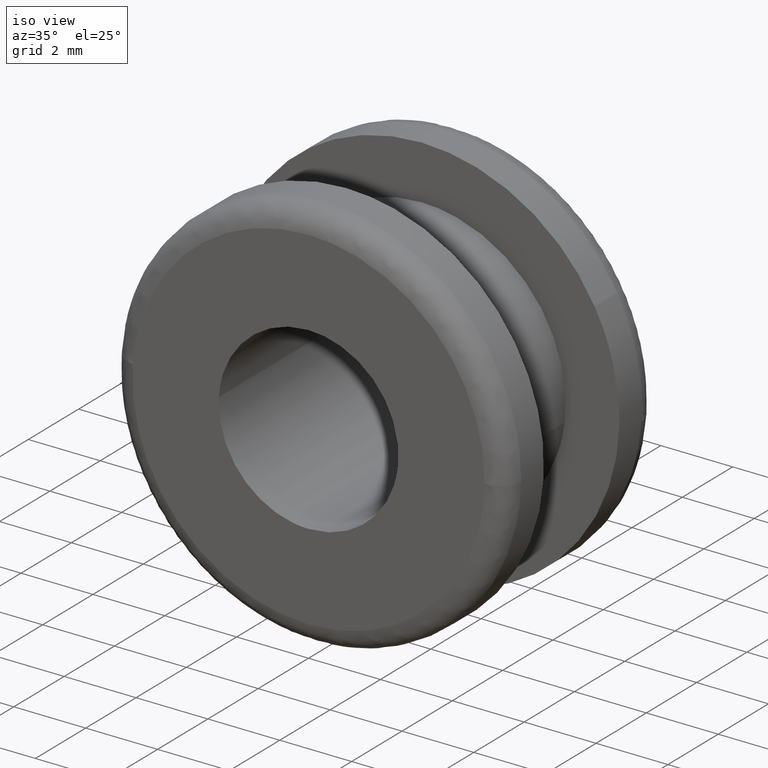
[diagram: clean part render]
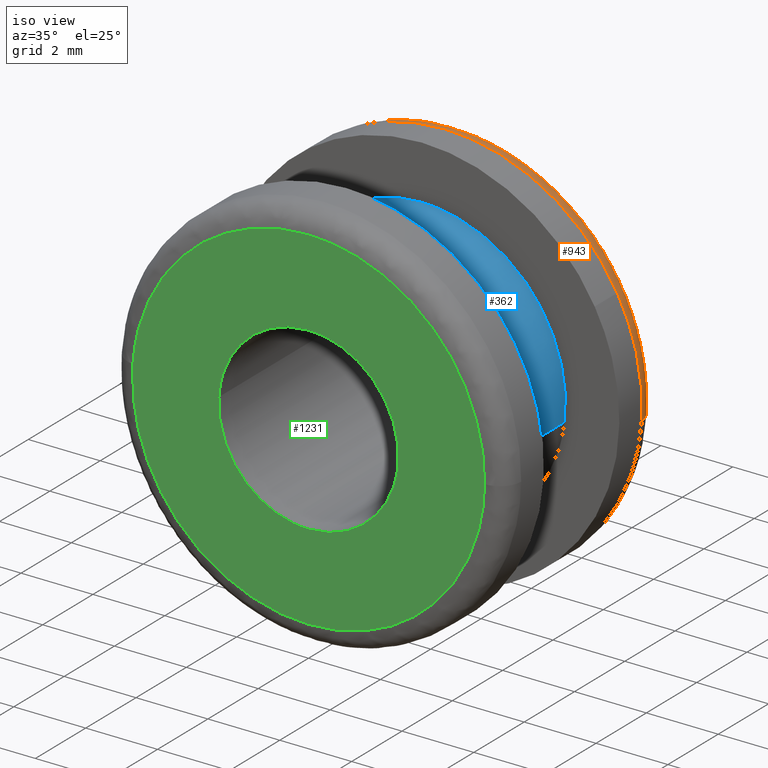
[diagram: same view with three faces highlighted in distinct colors, each labeled with its STEP entity id]
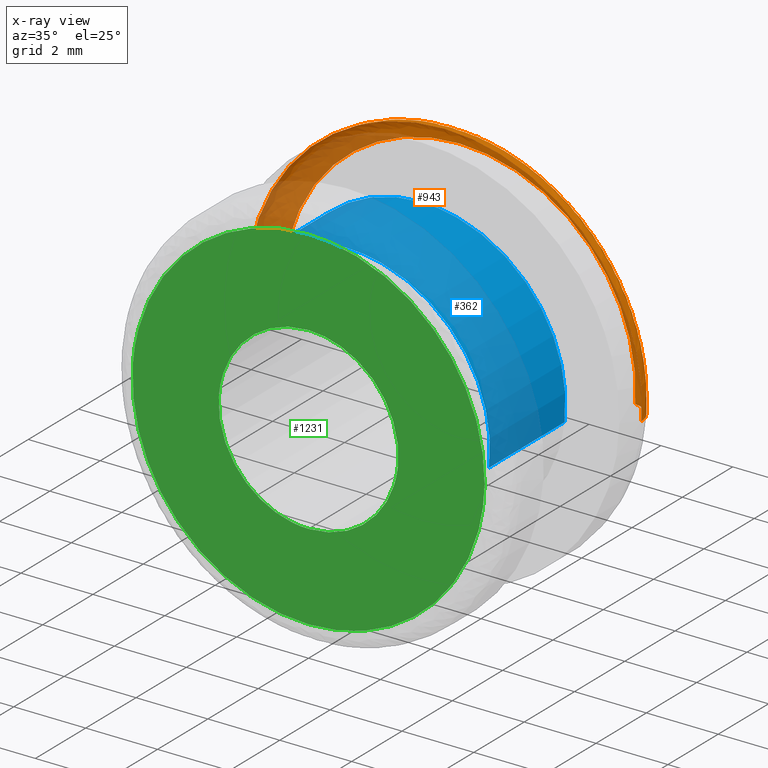
[diagram: x-ray of the same camera — body ghosted, the three highlighted faces saturated]
A machine part, iso view with three faces highlighted in distinct colors.
The next image is the same camera in x-ray (body ghosted, the three faces saturated) — at least one of them is partly hidden behind the body in this view.
Their STEP definitions:

[orange] entity #943 — the highlighted face is a freeform B-spline surface patch.
#464=CARTESIAN_POINT('',(4.812205843439302,5.400000000000018,2.663207637486718));
#465=VERTEX_POINT('',#464);
#466=CARTESIAN_POINT('',(0.0,5.400000000000000,5.500000000000000));
#467=VERTEX_POINT('',#466);
#468=CARTESIAN_POINT('',(4.812205843439302,5.400000000000018,2.663207637486718));
#469=CARTESIAN_POINT('',(3.242246591569628,5.400000000000000,5.500000000000001));
#470=CARTESIAN_POINT('',(0.0,5.400000000000000,5.500000000000000));
#478=(BOUNDED_CURVE()B_SPLINE_CURVE(2,(#468,#469,#470),.UNSPECIFIED.,.F.,.U.)B_SPLINE_CURVE_WITH_KNOTS((3,3),(0.332484260513294,0.500000000000000),.UNSPECIFIED.)CURVE()GEOMETRIC_REPRESENTATION_ITEM()RATIONAL_B_SPLINE_CURVE((0.870495160132448,0.803743103439292,1.0))REPRESENTATION_ITEM(''));
#479=EDGE_CURVE('',#465,#467,#478,.T.);
#481=CARTESIAN_POINT('',(-3.715745918085256,5.400000000007310,4.055025557530997));
#482=VERTEX_POINT('',#481);
#483=CARTESIAN_POINT('',(0.0,5.400000000000000,5.500000000000000));
#484=CARTESIAN_POINT('',(-2.138832675736071,5.400000000000001,5.500000000000000));
#485=CARTESIAN_POINT('',(-3.715745918085256,5.400000000007310,4.055025557530997));
#493=(BOUNDED_CURVE()B_SPLINE_CURVE(2,(#483,#484,#485),.UNSPECIFIED.,.F.,.U.)B_SPLINE_CURVE_WITH_KNOTS((3,3),(0.500000000000000,0.618415192420787),.UNSPECIFIED.)CURVE()GEOMETRIC_REPRESENTATION_ITEM()RATIONAL_B_SPLINE_CURVE((1.0,0.861267972541846,0.853959782894757))REPRESENTATION_ITEM(''));
#494=EDGE_CURVE('',#467,#482,#493,.T.);
#563=CARTESIAN_POINT('',(5.486611206122207,5.400000000027497,-0.383532883667365));
#564=VERTEX_POINT('',#563);
#565=CARTESIAN_POINT('',(5.486611206122206,5.400000000027497,-0.383532883667365));
#566=CARTESIAN_POINT('',(5.499999999999999,5.400000000000000,-0.192000137313358));
#567=CARTESIAN_POINT('',(5.500000000000000,5.400000000000000,-1.928755E-016));
#568=CARTESIAN_POINT('',(5.500000000000000,5.400000000000000,1.420417923047572));
#569=CARTESIAN_POINT('',(4.812205843439302,5.400000000000018,2.663207637486718));
#577=(BOUNDED_CURVE()B_SPLINE_CURVE(2,(#565,#566,#567,#568,#569),.UNSPECIFIED.,.F.,.U.)B_SPLINE_CURVE_WITH_KNOTS((3,2,3),(0.237833686534982,0.250000000000000,0.332484260513294),.UNSPECIFIED.)CURVE()GEOMETRIC_REPRESENTATION_ITEM()RATIONAL_B_SPLINE_CURVE((0.972879876386744,0.985746277152550,1.0,0.903363677747256,0.870495160132448))REPRESENTATION_ITEM(''));
#578=EDGE_CURVE('',#564,#465,#577,.T.);
#614=CARTESIAN_POINT('',(-5.499565743120951,5.400000000027498,0.069113219361356));
#615=VERTEX_POINT('',#614);
#616=CARTESIAN_POINT('',(-3.715745918085256,5.400000000007310,4.055025557530997));
#617=CARTESIAN_POINT('',(-5.469672098197592,5.400000000015455,2.447848677929653));
#618=CARTESIAN_POINT('',(-5.499565743120951,5.400000000027498,0.069113219361356));
#626=(BOUNDED_CURVE()B_SPLINE_CURVE(2,(#616,#617,#618),.UNSPECIFIED.,.F.,.U.)B_SPLINE_CURVE_WITH_KNOTS((3,3),(0.618415192420787,0.747784295921543),.UNSPECIFIED.)CURVE()GEOMETRIC_REPRESENTATION_ITEM()RATIONAL_B_SPLINE_CURVE((0.853959782894757,0.845975554490198,0.994854295643585))REPRESENTATION_ITEM(''));
#627=EDGE_CURVE('',#482,#615,#626,.T.);
#848=CARTESIAN_POINT('',(4.846450912742304,5.998547604767666,-0.338783221479301));
#849=CARTESIAN_POINT('',(4.856146733633645,5.998547604767664,-0.200080012378673));
#850=CARTESIAN_POINT('',(4.857893936947161,5.998547604767666,-0.061049309157583));
#851=CARTESIAN_POINT('',(4.918943246104744,5.998547604767666,4.796844627789578));
#852=CARTESIAN_POINT('',(0.061049309157583,5.998547604767666,4.857893936947161));
#853=CARTESIAN_POINT('',(-4.796844627789578,5.998547604767666,4.918943246104744));
#854=CARTESIAN_POINT('',(-4.857893936947161,5.998547604767666,0.061049309157584));
#855=CARTESIAN_POINT('',(5.533020207342917,6.046522521817596,-0.386776724680173));
#856=CARTESIAN_POINT('',(5.544089580351014,6.046522521817597,-0.228424216299388));
#857=CARTESIAN_POINT('',(5.546084300077691,6.046522521817598,-0.069697819558044));
#858=CARTESIAN_POINT('',(5.615782119635735,6.046522521817598,5.476386480519645));
#859=CARTESIAN_POINT('',(0.069697819558044,6.046522521817598,5.546084300077691));
#860=CARTESIAN_POINT('',(-5.476386480519645,6.046522521817598,5.615782119635735));
#861=CARTESIAN_POINT('',(-5.546084300077691,6.046522521817598,0.069697819558045));
#862=CARTESIAN_POINT('',(5.485162386431196,5.358277796135968,-0.383431302012458));
#863=CARTESIAN_POINT('',(5.496136014972224,5.358277796135969,-0.226448462583353));
#864=CARTESIAN_POINT('',(5.498113481384098,5.358277796135969,-0.069094968738537));
#865=CARTESIAN_POINT('',(5.567208450122635,5.358277796135969,5.429018512645561));
#866=CARTESIAN_POINT('',(0.069094968738537,5.358277796135969,5.498113481384098));
#867=CARTESIAN_POINT('',(-5.429018512645559,5.358277796135969,5.567208450122635));
#868=CARTESIAN_POINT('',(-5.498113481384098,5.358277796135969,0.069094968738538));
#876=(BOUNDED_SURFACE()B_SPLINE_SURFACE(2,2,((#848,#855,#862),(#849,#856,#863),(#850,#857,#864),(#851,#858,#865),(#852,#859,#866),(#853,#860,#867),(#854,#861,#868)),.UNSPECIFIED.,.F.,.F.,.U.)B_SPLINE_SURFACE_WITH_KNOTS((3,2,2,3),(3,3),(0.0,0.364411332317165,9.474703328497780,18.584995324678399),(0.0,1.093424524682850),.UNSPECIFIED.)GEOMETRIC_REPRESENTATION_ITEM()RATIONAL_B_SPLINE_SURFACE(((0.889999441113874,0.584039716581436,0.889999258193402),(0.899813013694379,0.590479626410364,0.899812828756935),(0.910479939527730,0.597479527817840,0.910479752397927),(0.643806539374376,0.422481825740131,0.643806407053623),(0.910479939527730,0.597479527817840,0.910479752397927),(0.643806539374376,0.422481825740131,0.643806407053623),(0.910479939527730,0.597479527817840,0.910479752397927)))REPRESENTATION_ITEM('')SURFACE());
#877=ORIENTED_EDGE('',*,*,#479,.F.);
#878=ORIENTED_EDGE('',*,*,#578,.F.);
#879=CARTESIAN_POINT('',(4.888071801949449,6.0,-0.341692932736474));
#880=VERTEX_POINT('',#879);
#881=CARTESIAN_POINT('',(4.888071801949449,6.0,-0.341692932736474));
#882=CARTESIAN_POINT('',(5.486611206067519,5.999999999735635,-0.383532883661093));
#883=CARTESIAN_POINT('',(5.486611206122207,5.400000000027498,-0.383532883667365));
#891=(BOUNDED_CURVE()B_SPLINE_CURVE(2,(#881,#882,#883),.UNSPECIFIED.,.F.,.U.)B_SPLINE_CURVE_WITH_KNOTS((3,3),(-1.725134642829971,-0.274865356812179),.UNSPECIFIED.)CURVE()GEOMETRIC_REPRESENTATION_ITEM()RATIONAL_B_SPLINE_CURVE((0.863472075215113,0.610566959956446,0.863472075339921))REPRESENTATION_ITEM(''));
#892=EDGE_CURVE('',#880,#564,#891,.T.);
#893=ORIENTED_EDGE('',*,*,#892,.F.);
#894=CARTESIAN_POINT('',(0.0,6.0,4.900000000000000));
#895=VERTEX_POINT('',#894);
#896=CARTESIAN_POINT('',(4.888071801949449,6.0,-0.341692932736474));
#897=CARTESIAN_POINT('',(4.900000000000000,6.0,-0.171054667793707));
#898=CARTESIAN_POINT('',(4.900000000000000,6.0,-1.928755E-016));
#899=CARTESIAN_POINT('',(4.899999999999999,6.0,4.899999999999999));
#900=CARTESIAN_POINT('',(0.0,6.0,4.900000000000000));
#908=(BOUNDED_CURVE()B_SPLINE_CURVE(2,(#896,#897,#898,#899,#900),.UNSPECIFIED.,.F.,.U.)B_SPLINE_CURVE_WITH_KNOTS((3,2,3),(0.237833686534600,0.250000000000000,0.500000000000000),.UNSPECIFIED.)CURVE()GEOMETRIC_REPRESENTATION_ITEM()RATIONAL_B_SPLINE_CURVE((0.972879876385937,0.985746277152103,1.0,0.707106781186547,1.0))REPRESENTATION_ITEM(''));
#909=EDGE_CURVE('',#880,#895,#908,.T.);
#910=ORIENTED_EDGE('',*,*,#909,.T.);
#911=CARTESIAN_POINT('',(-4.899613116827728,6.0,0.061573595447684));
#912=VERTEX_POINT('',#911);
#913=CARTESIAN_POINT('',(0.0,6.0,4.900000000000000));
#914=CARTESIAN_POINT('',(-4.838808456513483,5.999999999999999,4.900000000000000));
#915=CARTESIAN_POINT('',(-4.899613116827728,6.0,0.061573595447684));
#923=(BOUNDED_CURVE()B_SPLINE_CURVE(2,(#913,#914,#915),.UNSPECIFIED.,.F.,.U.)B_SPLINE_CURVE_WITH_KNOTS((3,3),(0.500000000000000,0.747784295920552),.UNSPECIFIED.)CURVE()GEOMETRIC_REPRESENTATION_ITEM()RATIONAL_B_SPLINE_CURVE((1.0,0.709702639985618,0.994854295641306))REPRESENTATION_ITEM(''));
#924=EDGE_CURVE('',#895,#912,#923,.T.);
#925=ORIENTED_EDGE('',*,*,#924,.T.);
#926=CARTESIAN_POINT('',(-4.899613116827728,6.000000000000002,0.061573595447684));
#927=CARTESIAN_POINT('',(-5.499565743065998,5.999999999541493,0.069113219357744));
#928=CARTESIAN_POINT('',(-5.499565743120951,5.400000000027498,0.069113219361356));
#936=(BOUNDED_CURVE()B_SPLINE_CURVE(2,(#926,#927,#928),.UNSPECIFIED.,.F.,.U.)B_SPLINE_CURVE_WITH_KNOTS((3,3),(-1.725134642498153,-0.274865356812178),.UNSPECIFIED.)CURVE()GEOMETRIC_REPRESENTATION_ITEM()RATIONAL_B_SPLINE_CURVE((0.883342149373452,0.624617224284152,0.883342149619524))REPRESENTATION_ITEM(''));
#937=EDGE_CURVE('',#912,#615,#936,.T.);
#938=ORIENTED_EDGE('',*,*,#937,.T.);
#939=ORIENTED_EDGE('',*,*,#627,.F.);
#940=ORIENTED_EDGE('',*,*,#494,.F.);
#941=EDGE_LOOP('',(#877,#878,#893,#910,#925,#938,#939,#940));
#942=FACE_OUTER_BOUND('',#941,.T.);
#943=ADVANCED_FACE('',(#942),#876,.T.);

[blue] entity #362 — the highlighted face is a freeform B-spline surface patch.
#260=CARTESIAN_POINT('',(3.972038105454666,4.575000000000001,-0.472136938627034));
#261=CARTESIAN_POINT('',(3.985550461794422,4.575000000000001,-0.358458914551911));
#262=CARTESIAN_POINT('',(3.992539193687467,4.575000000000001,-0.244194158139428));
#263=CARTESIAN_POINT('',(4.236733351826894,4.575000000000001,3.748345035548039));
#264=CARTESIAN_POINT('',(0.244194158139428,4.575000000000001,3.992539193687467));
#265=CARTESIAN_POINT('',(-3.748345035548039,4.575000000000001,4.236733351826894));
#266=CARTESIAN_POINT('',(-3.992539193687467,4.575000000000001,0.244194158139428));
#267=CARTESIAN_POINT('',(3.972038105454666,1.423125000000000,-0.472136938627034));
#268=CARTESIAN_POINT('',(3.985550461794422,1.423125000000000,-0.358458914551911));
#269=CARTESIAN_POINT('',(3.992539193687467,1.423125000000000,-0.244194158139428));
#270=CARTESIAN_POINT('',(4.236733351826894,1.423124999999999,3.748345035548039));
#271=CARTESIAN_POINT('',(0.244194158139428,1.423125000000000,3.992539193687467));
#272=CARTESIAN_POINT('',(-3.748345035548039,1.423124999999999,4.236733351826894));
#273=CARTESIAN_POINT('',(-3.992539193687467,1.423125000000000,0.244194158139428));
#281=(BOUNDED_SURFACE()B_SPLINE_SURFACE(2,1,((#260,#267),(#261,#268),(#262,#269),(#263,#270),(#264,#271),(#265,#272),(#266,#273)),.UNSPECIFIED.,.F.,.F.,.U.)B_SPLINE_SURFACE_WITH_KNOTS((3,2,2,3),(2,2),(0.0,0.265096679918781,6.892513677888300,13.519930675857820),(0.0,3.151875000000002),.UNSPECIFIED.)GEOMETRIC_REPRESENTATION_ITEM()RATIONAL_B_SPLINE_SURFACE(((0.977505800795127,0.977505800795127),(0.988284271247462,0.988284271247462),(1.0,1.0),(0.707106781186548,0.707106781186548),(1.0,1.0),(0.707106781186548,0.707106781186548),(1.0,1.0)))REPRESENTATION_ITEM('')SURFACE());
#282=CARTESIAN_POINT('',(3.972038520572323,1.499999999999980,-0.472133446259905));
#283=VERTEX_POINT('',#282);
#284=CARTESIAN_POINT('',(0.0,1.500000000000000,4.0));
#285=VERTEX_POINT('',#284);
#286=CARTESIAN_POINT('',(3.972038520572323,1.499999999999980,-0.472133446259905));
#287=CARTESIAN_POINT('',(4.000000000000001,1.500000000000000,-0.236894713963877));
#288=CARTESIAN_POINT('',(4.0,1.500000000000000,-1.928755E-016));
#289=CARTESIAN_POINT('',(4.000000000000000,1.500000000000000,4.000000000000000));
#290=CARTESIAN_POINT('',(0.0,1.500000000000000,4.0));
#298=(BOUNDED_CURVE()B_SPLINE_CURVE(2,(#286,#287,#288,#289,#290),.UNSPECIFIED.,.F.,.U.)B_SPLINE_CURVE_WITH_KNOTS((3,2,3),(0.229562622109743,0.250000000000000,0.500000000000000),.UNSPECIFIED.)CURVE()GEOMETRIC_REPRESENTATION_ITEM()RATIONAL_B_SPLINE_CURVE((0.956027045438608,0.976056122422463,1.0,0.707106781186548,1.0))REPRESENTATION_ITEM(''));
#299=EDGE_CURVE('',#283,#285,#298,.T.);
#300=ORIENTED_EDGE('',*,*,#299,.F.);
#301=CARTESIAN_POINT('',(3.972038515447482,4.500000000000000,-0.472133489375299));
#302=VERTEX_POINT('',#301);
#303=CARTESIAN_POINT('',(3.972038515447482,4.500000000000000,-0.472133489375299));
#304=CARTESIAN_POINT('',(3.972038520572323,1.499999999999980,-0.472133446259905));
#305=QUASI_UNIFORM_CURVE('',1,(#303,#304),.UNSPECIFIED.,.F.,.U.);
#306=EDGE_CURVE('',#302,#283,#305,.T.);
#307=ORIENTED_EDGE('',*,*,#306,.F.);
#308=CARTESIAN_POINT('',(0.0,4.500000000000000,4.0));
#309=VERTEX_POINT('',#308);
#310=CARTESIAN_POINT('',(3.972038515447482,4.500000000000000,-0.472133489375300));
#311=CARTESIAN_POINT('',(4.000000000000000,4.500000000000001,-0.236894735749473));
#312=CARTESIAN_POINT('',(4.0,4.500000000000000,-1.928755E-016));
#313=CARTESIAN_POINT('',(4.000000000000000,4.500000000000000,4.000000000000000));
#314=CARTESIAN_POINT('',(0.0,4.500000000000000,4.0));
#322=(BOUNDED_CURVE()B_SPLINE_CURVE(2,(#310,#311,#312,#313,#314),.UNSPECIFIED.,.F.,.U.)B_SPLINE_CURVE_WITH_KNOTS((3,2,3),(0.229562620275259,0.250000000000000,0.500000000000000),.UNSPECIFIED.)CURVE()GEOMETRIC_REPRESENTATION_ITEM()RATIONAL_B_SPLINE_CURVE((0.956027041842938,0.976056120273231,1.0,0.707106781186548,1.0))REPRESENTATION_ITEM(''));
#323=EDGE_CURVE('',#302,#309,#322,.T.);
#324=ORIENTED_EDGE('',*,*,#323,.T.);
#325=CARTESIAN_POINT('',(-3.992539417849797,4.500000000000000,0.244190493062515));
#326=VERTEX_POINT('',#325);
#327=CARTESIAN_POINT('',(0.0,4.500000000000000,4.0));
#328=CARTESIAN_POINT('',(-3.762827728281775,4.499999999999999,4.0));
#329=CARTESIAN_POINT('',(-3.992539417849797,4.500000000000000,0.244190493062515));
#337=(BOUNDED_CURVE()B_SPLINE_CURVE(2,(#327,#328,#329),.UNSPECIFIED.,.F.,.U.)B_SPLINE_CURVE_WITH_KNOTS((3,3),(0.500000000000000,0.739333120636739),.UNSPECIFIED.)CURVE()GEOMETRIC_REPRESENTATION_ITEM()RATIONAL_B_SPLINE_CURVE((1.0,0.719603807712149,0.976072381143582))REPRESENTATION_ITEM(''));
#338=EDGE_CURVE('',#309,#326,#337,.T.);
#339=ORIENTED_EDGE('',*,*,#338,.T.);
#340=CARTESIAN_POINT('',(-3.992539420651863,1.499999999999981,0.244190447247758));
#341=VERTEX_POINT('',#340);
#342=CARTESIAN_POINT('',(-3.992539417849797,4.500000000000000,0.244190493062515));
#343=CARTESIAN_POINT('',(-3.992539420651863,1.499999999999981,0.244190447247758));
#344=QUASI_UNIFORM_CURVE('',1,(#342,#343),.UNSPECIFIED.,.F.,.U.);
#345=EDGE_CURVE('',#326,#341,#344,.T.);
#346=ORIENTED_EDGE('',*,*,#345,.T.);
#347=CARTESIAN_POINT('',(0.0,1.500000000000000,4.0));
#348=CARTESIAN_POINT('',(-3.762827771541254,1.500000000000001,4.000000000000000));
#349=CARTESIAN_POINT('',(-3.992539420651863,1.499999999999980,0.244190447247758));
#357=(BOUNDED_CURVE()B_SPLINE_CURVE(2,(#347,#348,#349),.UNSPECIFIED.,.F.,.U.)B_SPLINE_CURVE_WITH_KNOTS((3,3),(0.500000000000000,0.739333122616730),.UNSPECIFIED.)CURVE()GEOMETRIC_REPRESENTATION_ITEM()RATIONAL_B_SPLINE_CURVE((1.0,0.719603805392445,0.976072385387086))REPRESENTATION_ITEM(''));
#358=EDGE_CURVE('',#285,#341,#357,.T.);
#359=ORIENTED_EDGE('',*,*,#358,.F.);
#360=EDGE_LOOP('',(#300,#307,#324,#339,#346,#359));
#361=FACE_OUTER_BOUND('',#360,.T.);
#362=ADVANCED_FACE('',(#361),#281,.T.);

[green] entity #1231 — the highlighted face is a freeform B-spline surface patch.
#703=CARTESIAN_POINT('',(2.482524203454801,-1.152428E-015,-0.295082326224942));
#704=VERTEX_POINT('',#703);
#710=CARTESIAN_POINT('',(0.0,-4.592274E-016,2.500000000000000));
#711=VERTEX_POINT('',#710);
#712=CARTESIAN_POINT('',(2.482524203454801,-1.152428E-015,-0.295082326224942));
#713=CARTESIAN_POINT('',(2.500000000000000,-4.592274E-016,-0.148058651687264));
#714=CARTESIAN_POINT('',(2.500000000000000,-4.592274E-016,-1.928755E-016));
#715=CARTESIAN_POINT('',(2.500000000000000,-4.592274E-016,2.500000000000000));
#716=CARTESIAN_POINT('',(0.0,-4.592274E-016,2.500000000000000));
#724=(BOUNDED_CURVE()B_SPLINE_CURVE(2,(#712,#713,#714,#715,#716),.UNSPECIFIED.,.F.,.U.)B_SPLINE_CURVE_WITH_KNOTS((3,2,3),(0.229562695475691,0.250000000000000,0.500000000000000),.UNSPECIFIED.)CURVE()GEOMETRIC_REPRESENTATION_ITEM()RATIONAL_B_SPLINE_CURVE((0.956027189239122,0.976056208376017,1.0,0.707106781186548,1.0))REPRESENTATION_ITEM(''));
#725=EDGE_CURVE('',#704,#711,#724,.T.);
#727=CARTESIAN_POINT('',(-2.495337091099553,-4.794139E-016,0.152619794851108));
#728=VERTEX_POINT('',#727);
#729=CARTESIAN_POINT('',(0.0,-4.592274E-016,2.500000000000000));
#730=CARTESIAN_POINT('',(-2.351766634577265,-4.592274E-016,2.500000000000000));
#731=CARTESIAN_POINT('',(-2.495337091099553,-4.794139E-016,0.152619794851108));
#739=(BOUNDED_CURVE()B_SPLINE_CURVE(2,(#729,#730,#731),.UNSPECIFIED.,.F.,.U.)B_SPLINE_CURVE_WITH_KNOTS((3,3),(0.500000000000000,0.739333069696522),.UNSPECIFIED.)CURVE()GEOMETRIC_REPRESENTATION_ITEM()RATIONAL_B_SPLINE_CURVE((1.0,0.719603867392325,0.976072271968873))REPRESENTATION_ITEM(''));
#740=EDGE_CURVE('',#711,#728,#739,.T.);
#814=CARTESIAN_POINT('',(0.0,-4.592274E-016,-2.500000000000000));
#815=VERTEX_POINT('',#814);
#816=CARTESIAN_POINT('',(-2.495337091099553,-4.794139E-016,0.152619794851108));
#817=CARTESIAN_POINT('',(-2.500000000000000,-4.592274E-016,0.076381129074879));
#818=CARTESIAN_POINT('',(-2.500000000000000,-4.592274E-016,-1.928755E-016));
#819=CARTESIAN_POINT('',(-2.500000000000000,-4.592274E-016,-2.500000000000000));
#820=CARTESIAN_POINT('',(0.0,-4.592274E-016,-2.500000000000000));
#828=(BOUNDED_CURVE()B_SPLINE_CURVE(2,(#816,#817,#818,#819,#820),.UNSPECIFIED.,.F.,.U.)B_SPLINE_CURVE_WITH_KNOTS((3,2,3),(0.739333069696522,0.750000000000000,1.0),.UNSPECIFIED.)CURVE()GEOMETRIC_REPRESENTATION_ITEM()RATIONAL_B_SPLINE_CURVE((0.976072271968873,0.987502913794222,1.0,0.707106781186548,1.0))REPRESENTATION_ITEM(''));
#829=EDGE_CURVE('',#728,#815,#828,.T.);
#831=CARTESIAN_POINT('',(0.0,-4.592274E-016,-2.500000000000000));
#832=CARTESIAN_POINT('',(2.220439251613772,-4.592274E-016,-2.500000000000001));
#833=CARTESIAN_POINT('',(2.482524203454801,-1.152428E-015,-0.295082326224942));
#841=(BOUNDED_CURVE()B_SPLINE_CURVE(2,(#831,#832,#833),.UNSPECIFIED.,.F.,.U.)B_SPLINE_CURVE_WITH_KNOTS((3,3),(0.0,0.229562695475691),.UNSPECIFIED.)CURVE()GEOMETRIC_REPRESENTATION_ITEM()RATIONAL_B_SPLINE_CURVE((1.0,0.731050572810530,0.956027189239122))REPRESENTATION_ITEM(''));
#842=EDGE_CURVE('',#815,#704,#841,.T.);
#1037=CARTESIAN_POINT('',(4.899613116877163,-1.087399E-014,-0.061573595449736));
#1038=VERTEX_POINT('',#1037);
#1052=CARTESIAN_POINT('',(0.0,-9.000857E-016,-4.900000000000000));
#1053=VERTEX_POINT('',#1052);
#1054=CARTESIAN_POINT('',(0.0,-9.000857E-016,-4.900000000000000));
#1055=CARTESIAN_POINT('',(4.838808456510669,-9.000857E-016,-4.900000000000000));
#1056=CARTESIAN_POINT('',(4.899613116877163,-1.087399E-014,-0.061573595449736));
#1064=(BOUNDED_CURVE()B_SPLINE_CURVE(2,(#1054,#1055,#1056),.UNSPECIFIED.,.F.,.U.)B_SPLINE_CURVE_WITH_KNOTS((3,3),(0.0,0.247784295920450),.UNSPECIFIED.)CURVE()GEOMETRIC_REPRESENTATION_ITEM()RATIONAL_B_SPLINE_CURVE((1.0,0.709702639985737,0.994854295641070))REPRESENTATION_ITEM(''));
#1065=EDGE_CURVE('',#1053,#1038,#1064,.T.);
#1067=CARTESIAN_POINT('',(-4.888071801987687,-1.090493E-014,0.341692932740065));
#1068=VERTEX_POINT('',#1067);
#1069=CARTESIAN_POINT('',(-4.888071801987687,-1.090493E-014,0.341692932740065));
#1070=CARTESIAN_POINT('',(-4.900000000000000,-9.000857E-016,0.171054667794621));
#1071=CARTESIAN_POINT('',(-4.900000000000000,-9.000857E-016,-1.928755E-016));
#1072=CARTESIAN_POINT('',(-4.899999999999999,-9.000857E-016,-4.899999999999999));
#1073=CARTESIAN_POINT('',(0.0,-9.000857E-016,-4.900000000000000));
#1081=(BOUNDED_CURVE()B_SPLINE_CURVE(2,(#1069,#1070,#1071,#1072,#1073),.UNSPECIFIED.,.F.,.U.)B_SPLINE_CURVE_WITH_KNOTS((3,2,3),(0.737833686534536,0.750000000000000,1.0),.UNSPECIFIED.)CURVE()GEOMETRIC_REPRESENTATION_ITEM()RATIONAL_B_SPLINE_CURVE((0.972879876385801,0.985746277152027,1.0,0.707106781186547,1.0))REPRESENTATION_ITEM(''));
#1082=EDGE_CURVE('',#1068,#1053,#1081,.T.);
#1125=CARTESIAN_POINT('',(0.0,-9.000857E-016,4.900000000000000));
#1126=VERTEX_POINT('',#1125);
#1127=CARTESIAN_POINT('',(0.0,-9.000857E-016,4.900000000000000));
#1128=CARTESIAN_POINT('',(-4.569430551590508,-9.000857E-016,4.900000000000000));
#1129=CARTESIAN_POINT('',(-4.888071801987687,-1.090493E-014,0.341692932740065));
#1137=(BOUNDED_CURVE()B_SPLINE_CURVE(2,(#1127,#1128,#1129),.UNSPECIFIED.,.F.,.U.)B_SPLINE_CURVE_WITH_KNOTS((3,3),(0.500000000000000,0.737833686534537),.UNSPECIFIED.)CURVE()GEOMETRIC_REPRESENTATION_ITEM()RATIONAL_B_SPLINE_CURVE((1.0,0.721360504034520,0.972879876385802))REPRESENTATION_ITEM(''));
#1138=EDGE_CURVE('',#1126,#1068,#1137,.T.);
#1140=CARTESIAN_POINT('',(4.899613116877163,-1.087399E-014,-0.061573595449736));
#1141=CARTESIAN_POINT('',(4.900000000000000,-9.000857E-016,-0.030788013178068));
#1142=CARTESIAN_POINT('',(4.900000000000000,-9.000857E-016,-1.928755E-016));
#1143=CARTESIAN_POINT('',(4.899999999999999,-9.000857E-016,4.899999999999999));
#1144=CARTESIAN_POINT('',(0.0,-9.000857E-016,4.900000000000000));
#1152=(BOUNDED_CURVE()B_SPLINE_CURVE(2,(#1140,#1141,#1142,#1143,#1144),.UNSPECIFIED.,.F.,.U.)B_SPLINE_CURVE_WITH_KNOTS((3,2,3),(0.247784295920450,0.250000000000000,0.500000000000000),.UNSPECIFIED.)CURVE()GEOMETRIC_REPRESENTATION_ITEM()RATIONAL_B_SPLINE_CURVE((0.994854295641070,0.997404141200810,1.0,0.707106781186547,1.0))REPRESENTATION_ITEM(''));
#1153=EDGE_CURVE('',#1038,#1126,#1152,.T.);
#1214=CARTESIAN_POINT('',(-5.388904026930498,-6.796565E-016,-5.389510073001086));
#1215=CARTESIAN_POINT('',(-5.388904026930499,-6.796565E-016,5.389510248238743));
#1216=CARTESIAN_POINT('',(5.389075393546531,-6.796565E-016,-5.389510073001086));
#1217=CARTESIAN_POINT('',(5.389075393546531,-6.796565E-016,5.389510248238743));
#1218=B_SPLINE_SURFACE_WITH_KNOTS('',1,1,((#1214,#1216),(#1215,#1217)),.UNSPECIFIED.,.F.,.F.,.U.,(2,2),(2,2),(0.0,10.779020321239830),(0.0,10.777979420477029),.UNSPECIFIED.);
#1219=ORIENTED_EDGE('',*,*,#1065,.T.);
#1220=ORIENTED_EDGE('',*,*,#1153,.T.);
#1221=ORIENTED_EDGE('',*,*,#1138,.T.);
#1222=ORIENTED_EDGE('',*,*,#1082,.T.);
#1223=EDGE_LOOP('',(#1219,#1220,#1221,#1222));
#1224=FACE_OUTER_BOUND('',#1223,.T.);
#1225=ORIENTED_EDGE('',*,*,#740,.F.);
#1226=ORIENTED_EDGE('',*,*,#725,.F.);
#1227=ORIENTED_EDGE('',*,*,#842,.F.);
#1228=ORIENTED_EDGE('',*,*,#829,.F.);
#1229=EDGE_LOOP('',(#1225,#1226,#1227,#1228));
#1230=FACE_BOUND('',#1229,.T.);
#1231=ADVANCED_FACE('',(#1224,#1230),#1218,.F.);